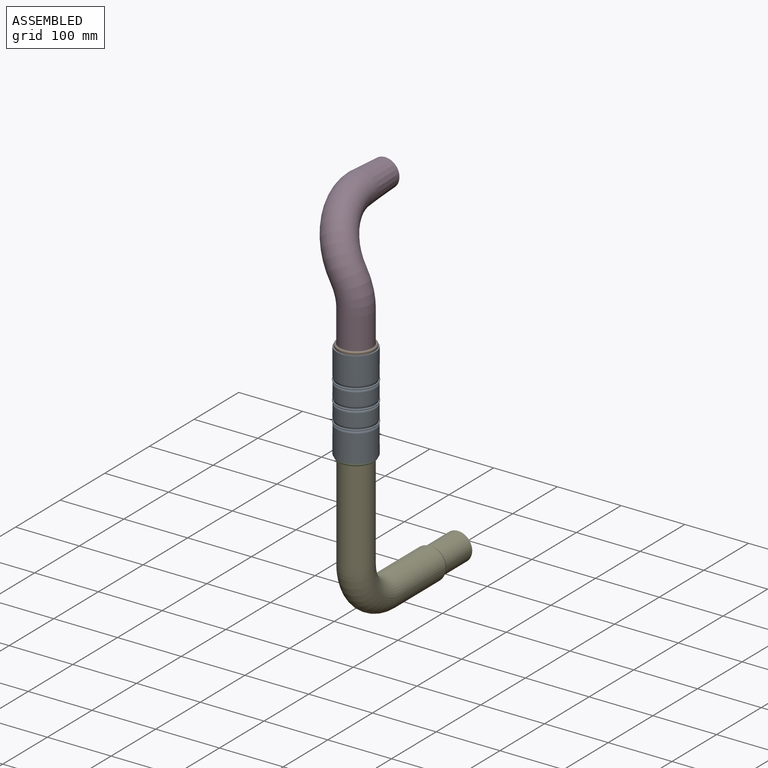
[diagram: assembled view]
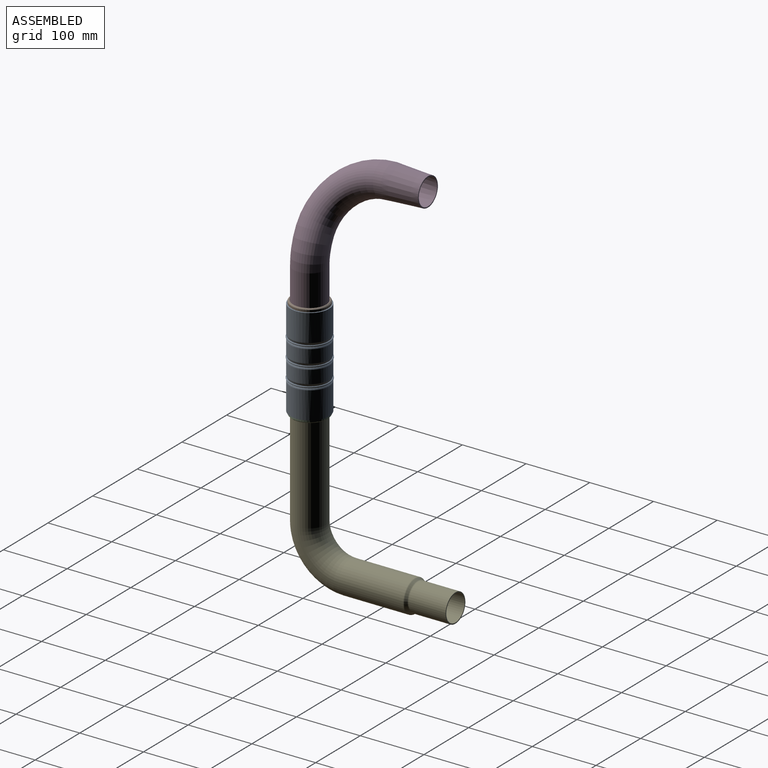
[diagram: assembled view, second angle]
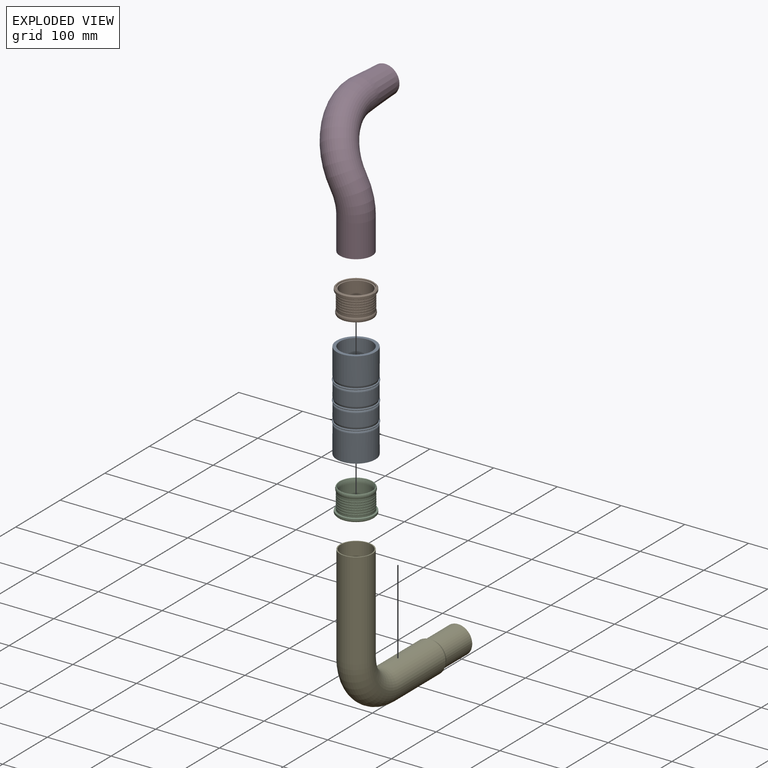
[diagram: exploded view]
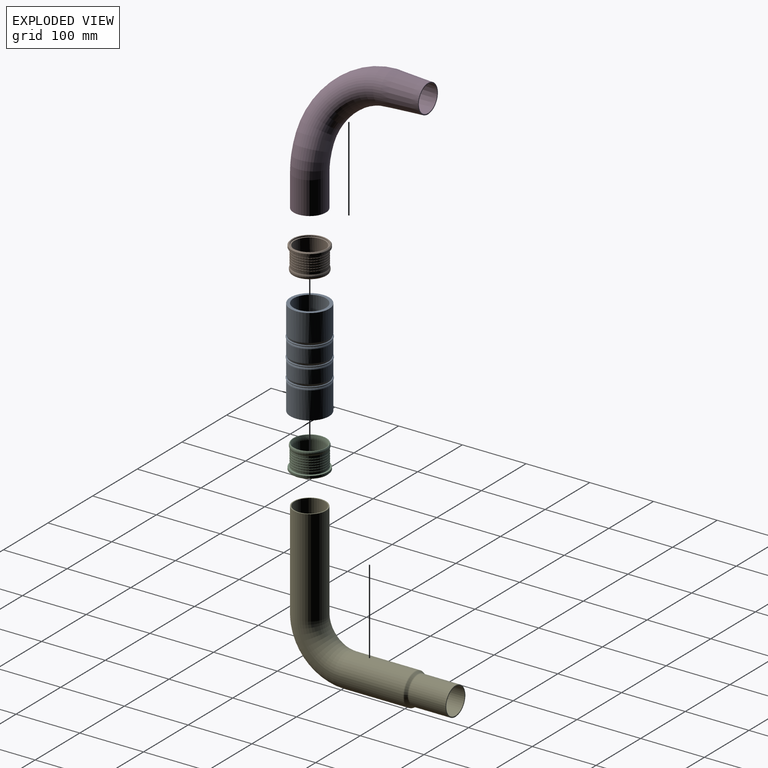
[diagram: exploded view, second angle]
ASSEMBLY  parts=5 mates=4
PART A: 42 faces, bbox 152.4x67.2x67.2 mm
  f0: torus R=33.9mm, axis (-1,0,0), area 504.2mm2, adj f1,f2
  f1: torus R=29.95mm, axis (-1,0,0), area 1164.2mm2, adj f0,f3
  f2: torus R=27.4mm, axis (-1,0,0), area 354.4mm2, adj f0,f4,f5
  f3: torus R=33.9mm, axis (-1,0,0), area 504.2mm2, adj f1,f6
  f4: cylinder r=30.4mm len=60.8mm, axis (-1,0,0), area 4042.4mm2, adj f2,f5,f7
  f5: cylinder r=30.4mm len=60.8mm, axis (-1,0,0), area 4042.4mm2, adj f2,f4,f7
  f6: torus R=27.4mm, axis (-1,0,0), area 354.4mm2, adj f3,f8,f9
  f7: plane 60.8x60.8mm, normal (1,0,0), area 876.5mm2, adj f4,f5,f10,f11
  f8: cylinder r=30.4mm len=60.8mm, axis (-1,0,0), area 1898.9mm2, adj f6,f9,f12
  f9: cylinder r=30.4mm len=60.8mm, axis (-1,0,0), area 1898.9mm2, adj f6,f8,f12
  f10: cylinder r=25.4mm len=50.8mm, axis (-1,0,0), area 3377.5mm2, adj f7,f11,f13
  f11: cylinder r=25.4mm len=50.8mm, axis (-1,0,0), area 3377.5mm2, adj f7,f10,f13
  f12: torus R=27.4mm, axis (-1,0,0), area 354.4mm2, adj f8,f9,f14
  f13: torus R=22.4mm, axis (-1,0,0), area 295.7mm2, adj f10,f11,f15
  f14: torus R=33.9mm, axis (-1,0,0), area 504.2mm2, adj f12,f16
  f15: torus R=28.9mm, axis (-1,0,0), area 947mm2, adj f13,f17
  f16: torus R=29.95mm, axis (-1,0,0), area 1164.2mm2, adj f14,f18
  f17: torus R=22.4mm, axis (-1,0,0), area 295.7mm2, adj f15,f19,f20
  f18: torus R=33.9mm, axis (-1,0,0), area 504.2mm2, adj f16,f21
  f19: cylinder r=25.4mm len=50.8mm, axis (-1,0,0), area 1586.6mm2, adj f17,f20,f22
  f20: cylinder r=25.4mm len=50.8mm, axis (-1,0,0), area 1586.6mm2, adj f17,f19,f22
  f21: torus R=27.4mm, axis (-1,0,0), area 354.4mm2, adj f18,f23,f24
  f22: torus R=22.4mm, axis (-1,0,0), area 295.7mm2, adj f19,f20,f25
  f23: cylinder r=30.4mm len=60.8mm, axis (-1,0,0), area 1898.9mm2, adj f21,f24,f26
  f24: cylinder r=30.4mm len=60.8mm, axis (-1,0,0), area 1898.9mm2, adj f21,f23,f26
  f25: torus R=28.9mm, axis (-1,0,0), area 947mm2, adj f22,f27
  f26: torus R=27.4mm, axis (-1,0,0), area 354.4mm2, adj f23,f24,f28
  f27: torus R=22.4mm, axis (-1,0,0), area 295.7mm2, adj f25,f29,f30
  f28: torus R=33.9mm, axis (-1,0,0), area 504.2mm2, adj f26,f31
  f29: cylinder r=25.4mm len=50.8mm, axis (-1,0,0), area 1586.6mm2, adj f27,f30,f32
  f30: cylinder r=25.4mm len=50.8mm, axis (-1,0,0), area 1586.6mm2, adj f27,f29,f32
  f31: torus R=29.95mm, axis (-1,0,0), area 1164.2mm2, adj f28,f33
  f32: torus R=22.4mm, axis (-1,0,0), area 295.7mm2, adj f29,f30,f34
  f33: torus R=33.9mm, axis (-1,0,0), area 504.2mm2, adj f31,f35
  f34: torus R=28.9mm, axis (-1,0,0), area 947mm2, adj f32,f36
  f35: torus R=27.4mm, axis (-1,0,0), area 354.4mm2, adj f33,f37,f38
  f36: torus R=22.4mm, axis (-1,0,0), area 295.7mm2, adj f34,f39,f40
  f37: cylinder r=30.4mm len=60.8mm, axis (-1,0,0), area 4042.4mm2, adj f35,f38,f41
  f38: cylinder r=30.4mm len=60.8mm, axis (-1,0,0), area 4042.4mm2, adj f35,f37,f41
  f39: cylinder r=25.4mm len=50.8mm, axis (-1,0,0), area 3377.5mm2, adj f36,f40,f41
  f40: cylinder r=25.4mm len=50.8mm, axis (-1,0,0), area 3377.5mm2, adj f36,f39,f41
  f41: plane 60.8x60.8mm, normal (-1,0,0), area 876.5mm2, adj f37,f38,f39,f40
PART B: 59 faces, bbox 42.2x60.8x60.8 mm
  f0: torus R=25.23mm, axis (-1,0,0), area 213.2mm2, adj f1,f2
  f1: torus R=26.5mm, axis (-1,0,0), area 63.4mm2, adj f0,f3,f4
  f2: torus R=26.5mm, axis (-1,0,0), area 63.4mm2, adj f0,f5,f6
  f3: cylinder r=25.9mm len=51.8mm, axis (-1,0,0), area 137.6mm2, adj f1,f4,f7
  f4: cylinder r=25.9mm len=51.8mm, axis (-1,0,0), area 137.6mm2, adj f1,f3,f7
  f5: cylinder r=25.9mm len=51.8mm, axis (-1,0,0), area 137.6mm2, adj f2,f6,f8
  f6: cylinder r=25.9mm len=51.8mm, axis (-1,0,0), area 137.6mm2, adj f2,f5,f8
  f7: torus R=26.5mm, axis (-1,0,0), area 63.4mm2, adj f3,f4,f9
  f8: torus R=26.5mm, axis (-1,0,0), area 63.4mm2, adj f5,f6,f10
  f9: torus R=25.23mm, axis (-1,0,0), area 213.2mm2, adj f7,f11
  f10: torus R=25.23mm, axis (-1,0,0), area 213.2mm2, adj f8,f12
  f11: torus R=26.5mm, axis (-1,0,0), area 63.4mm2, adj f9,f13,f14
  f12: torus R=26.5mm, axis (-1,0,0), area 63.4mm2, adj f10,f15,f16
  f13: cylinder r=25.9mm len=51.8mm, axis (-1,0,0), area 137.6mm2, adj f11,f14,f17
  f14: cylinder r=25.9mm len=51.8mm, axis (-1,0,0), area 137.6mm2, adj f11,f13,f17
  f15: cylinder r=25.9mm len=51.8mm, axis (-1,0,0), area 137.6mm2, adj f12,f16,f18
  f16: cylinder r=25.9mm len=51.8mm, axis (-1,0,0), area 137.6mm2, adj f12,f15,f18
  f17: torus R=26.5mm, axis (-1,0,0), area 63.4mm2, adj f13,f14,f19
  f18: torus R=26.5mm, axis (-1,0,0), area 63.4mm2, adj f15,f16,f20
  f19: torus R=25.23mm, axis (-1,0,0), area 213.2mm2, adj f17,f21
  f20: torus R=25.23mm, axis (-1,0,0), area 213.2mm2, adj f18,f22
  f21: torus R=26.5mm, axis (-1,0,0), area 63.4mm2, adj f19,f23,f24
  f22: torus R=26.5mm, axis (-1,0,0), area 63.4mm2, adj f20,f25,f26
  f23: cylinder r=25.9mm len=51.8mm, axis (-1,0,0), area 137.6mm2, adj f21,f24,f27
  f24: cylinder r=25.9mm len=51.8mm, axis (-1,0,0), area 137.6mm2, adj f21,f23,f27
  f25: cylinder r=25.9mm len=51.8mm, axis (-1,0,0), area 217.3mm2, adj f22,f26,f28
  f26: cylinder r=25.9mm len=51.8mm, axis (-1,0,0), area 217.3mm2, adj f22,f25,f28
  f27: torus R=26.5mm, axis (-1,0,0), area 63.4mm2, adj f23,f24,f29
  f28: torus R=26.5mm, axis (-1,0,0), area 154.7mm2, adj f25,f26,f30
  f29: torus R=25.23mm, axis (-1,0,0), area 213.2mm2, adj f27,f31
  f30: plane 56.8x56.8mm, normal (1,0,0), area 327.7mm2, adj f28,f32,f33
  f31: torus R=26.5mm, axis (-1,0,0), area 63.4mm2, adj f29,f34,f35
  f32: revolved ~57.2x28.6mm, area 25.3mm2, adj f30,f33,f36
  f33: revolved ~57.2x28.6mm, area 25.3mm2, adj f30,f32,f37
  f34: cylinder r=25.9mm len=51.8mm, axis (-1,0,0), area 290mm2, adj f31,f35,f38
  f35: cylinder r=25.9mm len=51.8mm, axis (-1,0,0), area 290mm2, adj f31,f34,f38
  f36: cylinder r=28.6mm len=57.2mm, axis (-1,0,0), area 296.5mm2, adj f32,f37,f39
  f37: cylinder r=28.6mm len=57.2mm, axis (-1,0,0), area 296.5mm2, adj f33,f36,f40
  f38: torus R=26.5mm, axis (-1,0,0), area 62.1mm2, adj f34,f35,f41,f42
  f39: revolved ~57.2x28.6mm, area 185.6mm2, adj f36,f40,f43
  f40: revolved ~57.2x28.6mm, area 185.6mm2, adj f37,f39,f43
  f41: revolved ~53.8x26.9mm, area 533.2mm2, adj f38,f42,f44
  f42: revolved ~53.8x26.9mm, area 533.2mm2, adj f38,f41,f44
  f43: plane 54.2x54.2mm, normal (-1,0,0), area 167.1mm2, adj f39,f40,f45,f46
  f44: torus R=25.65mm, axis (-1,0,0), area 77.9mm2, adj f41,f42,f47
  f45: revolved ~52.2x26.1mm, area 57.4mm2, adj f43,f46,f48
  f46: revolved ~52.2x26.1mm, area 57.4mm2, adj f43,f45,f49
  f47: plane 51.31x51.31mm, normal (1,0,0), area 28.9mm2, adj f44,f50
  f48: cylinder r=25.6mm len=51.2mm, axis (-1,0,0), area 120.6mm2, adj f45,f49,f52
  f49: cylinder r=25.6mm len=51.2mm, axis (-1,0,0), area 120.6mm2, adj f46,f48,f52
  f50: torus R=25.47mm, axis (1,0,0), area 103.6mm2, adj f47,f51,f53
  f51: revolved ~49.98x24.99mm, area 218mm2, adj f50,f53,f56
  f52: plane 51.2x51.2mm, normal (-1,0,0), area 256.9mm2, adj f48,f49,f54,f55
  f53: revolved ~49.98x24.99mm, area 218mm2, adj f50,f51,f56
  f54: revolved ~47.9x23.95mm, area 21.2mm2, adj f52,f55,f57
  f55: revolved ~47.9x23.95mm, area 21.2mm2, adj f52,f54,f58
  f56: torus R=38.75mm, axis (-1,0,0), area 590.2mm2, adj f51,f53,f57,f58
  f57: cylinder r=23.75mm len=47.5mm, axis (-1,0,0), area 2188mm2, adj f54,f56,f58
  f58: cylinder r=23.75mm len=47.5mm, axis (-1,0,0), area 2188mm2, adj f55,f56,f57
PART C: same geometry as B
PART D: 10 faces, bbox 118.6x180.9x202.9 mm
  f0: plane 50.8x50.8mm, normal (0,0,-1), area 245.4mm2, adj f3,f8
  f1: torus R=88.9mm, axis (0.87,0,0.5), area 22286.2mm2, adj f2,f4
  f2: torus R=88.9mm, axis (0,1,0), area 7428.7mm2, adj f1,f3
  f3: cylinder r=25.4mm len=50.8mm, axis (0,0,-1), area 8107.3mm2, adj f0,f2
  f4: cone r=22.23mm half-angle=3.2deg, axis (0,-1,0), area 8563.9mm2, adj f1,f5
  f5: plane 44.45x44.45mm, normal (0,1,0), area 214.1mm2, adj f4,f9
  f6: torus R=88.9mm, axis (0.87,0,0.5), area 20886.3mm2, adj f7,f9
  f7: torus R=88.9mm, axis (0,1,0), area 6964.4mm2, adj f6,f8
  f8: cylinder r=23.81mm len=50.8mm, axis (0,0,-1), area 7600.6mm2, adj f0,f7
  f9: cone r=20.64mm half-angle=3.2deg, axis (0,-1,0), area 7998.7mm2, adj f5,f6
PART E: 16 faces, bbox 261.3x55x248.6 mm
  f0: plane 50.8x50.8mm, normal (0,0,1), area 245.4mm2, adj f3,f11
  f1: cylinder r=25.4mm len=100.64mm, axis (-1,0,0), area 16061.2mm2, adj f2,f7
  f2: torus R=63.5mm, axis (0,1,0), area 15918.7mm2, adj f1,f3
  f3: cylinder r=25.4mm len=152.4mm, axis (0,0,1), area 24322mm2, adj f0,f2
  f4: cylinder r=22.23mm len=57.78mm, axis (-1,0,0), area 8068.1mm2, adj f5,f8
  f5: torus R=25.4mm, axis (-1,0,0), area 262.8mm2, adj f4,f6
  f6: cone r=24.87mm half-angle=33.7deg, axis (-1,0,0), area 568.7mm2, adj f5,f7
  f7: torus R=22.23mm, axis (-1,0,0), area 295.8mm2, adj f1,f6
  f8: plane 44.45x44.45mm, normal (1,0,0), area 213.8mm2, adj f4,f12
  f9: cylinder r=23.81mm len=100.64mm, axis (-1,0,0), area 15057.4mm2, adj f10,f15
  f10: torus R=63.5mm, axis (0,1,0), area 14923.8mm2, adj f9,f11
  f11: cylinder r=23.81mm len=152.4mm, axis (0,0,1), area 22801.8mm2, adj f0,f10
  f12: cylinder r=20.64mm len=57.78mm, axis (-1,0,0), area 7491.8mm2, adj f8,f13
  f13: torus R=25.4mm, axis (-1,0,0), area 367.9mm2, adj f12,f14
  f14: cone r=23.55mm half-angle=33.7deg, axis (-1,0,0), area 537.2mm2, adj f13,f15
  f15: torus R=22.23mm, axis (-1,0,0), area 139.1mm2, adj f9,f14
PLACE A rot(axis=(0,-1,0),90deg) t=(5.9,-45.04,-212)mm
PLACE B rot(axis=(0.71,0,-0.71),180deg) t=(5.9,-45.04,-54.6)mm
PLACE C rot(axis=(0,-1,0),90deg) t=(5.9,-45.04,-217)mm
PLACE D t=(-50.46,43.86,-36.76)mm fixed
PLACE E rot(axis=(0,0,1),90deg) t=(5.9,81.96,-430.9)mm
MATE fastened A.f38 <-> C.f0  axis (0,0,-1) through (5.9,-45.04,-212)mm
MATE fastened A.f10 <-> B.f0  axis (0,0,-1) through (5.9,-45.04,-59.6)mm
MATE fastened E.f3 <-> C.f49  axis (0,0,1) through (5.9,-45.04,-215)mm
MATE fastened D.f3 <-> B.f49  axis (0,0,-1) through (5.9,-45.04,-56.6)mm
